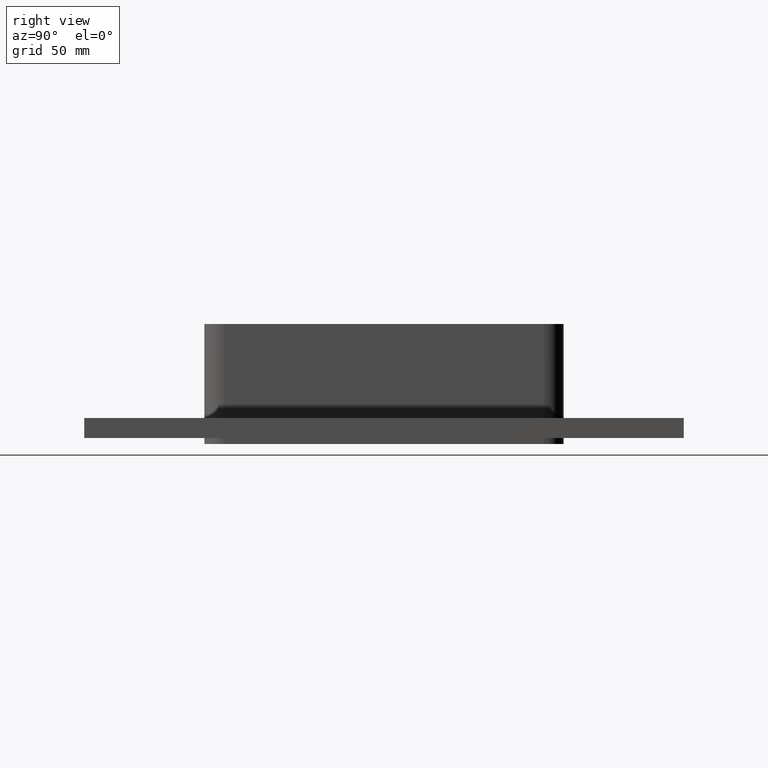
[diagram: clean part render]
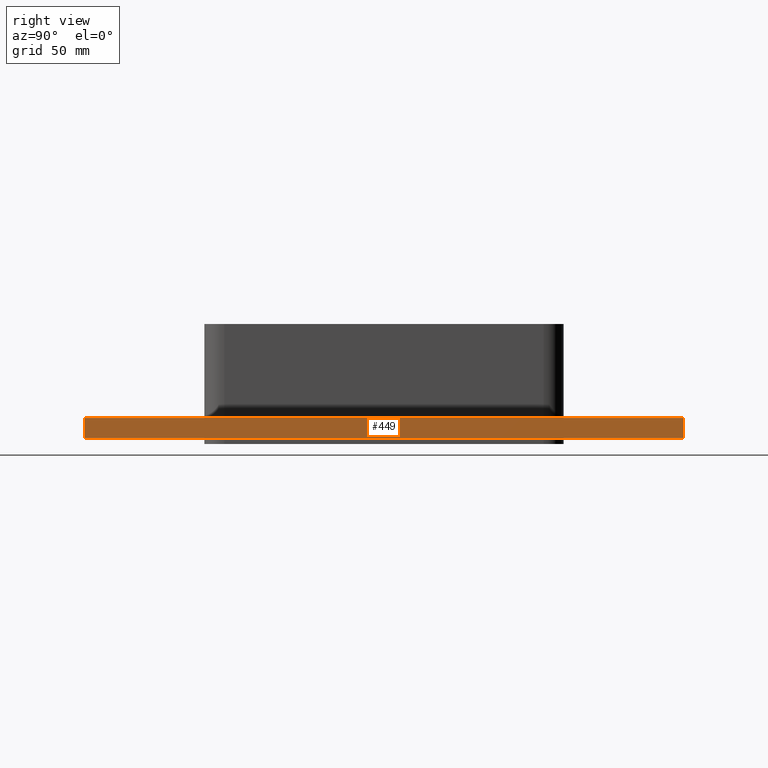
[diagram: same view with one face highlighted and labeled with its STEP entity id]
A machine part, right view. The second image highlights one B-rep face of the part: STEP entity #449.
In plain terms, the highlighted planar face has unit normal (1, 0, 0).
Its self-contained STEP definition (entity closure, byte-faithful):
#393=CARTESIAN_POINT('',(100.24999999999999,149.75,-27.0));
#394=VERTEX_POINT('',#393);
#402=CARTESIAN_POINT('',(100.24999999999999,149.75,-17.0));
#403=VERTEX_POINT('',#402);
#410=CARTESIAN_POINT('',(100.24999999999999,149.75,-27.0));
#411=DIRECTION('',(0.0,0.0,1.0));
#412=VECTOR('',#411,10.0);
#413=LINE('',#410,#412);
#414=EDGE_CURVE('',#394,#403,#413,.T.);
#419=CARTESIAN_POINT('',(100.24999999999999,-149.75,-27.0));
#420=DIRECTION('',(1.0,0.0,0.0));
#421=DIRECTION('',(0.0,1.0,0.0));
#422=AXIS2_PLACEMENT_3D('',#419,#420,#421);
#423=PLANE('',#422);
#424=CARTESIAN_POINT('',(100.24999999999999,-149.75,-27.0));
#425=VERTEX_POINT('',#424);
#426=CARTESIAN_POINT('',(100.24999999999999,149.75,-27.0));
#427=DIRECTION('',(0.0,-1.0,0.0));
#428=VECTOR('',#427,299.5);
#429=LINE('',#426,#428);
#430=EDGE_CURVE('',#394,#425,#429,.T.);
#431=ORIENTED_EDGE('',*,*,#430,.F.);
#432=ORIENTED_EDGE('',*,*,#414,.T.);
#433=CARTESIAN_POINT('',(100.24999999999999,-149.75,-17.0));
#434=VERTEX_POINT('',#433);
#435=CARTESIAN_POINT('',(100.24999999999999,-149.75,-17.0));
#436=DIRECTION('',(0.0,1.0,0.0));
#437=VECTOR('',#436,299.5);
#438=LINE('',#435,#437);
#439=EDGE_CURVE('',#434,#403,#438,.T.);
#440=ORIENTED_EDGE('',*,*,#439,.F.);
#441=CARTESIAN_POINT('',(100.24999999999999,-149.75,-27.0));
#442=DIRECTION('',(0.0,0.0,1.0));
#443=VECTOR('',#442,10.0);
#444=LINE('',#441,#443);
#445=EDGE_CURVE('',#425,#434,#444,.T.);
#446=ORIENTED_EDGE('',*,*,#445,.F.);
#447=EDGE_LOOP('',(#431,#432,#440,#446));
#448=FACE_OUTER_BOUND('',#447,.T.);
#449=ADVANCED_FACE('',(#448),#423,.T.);